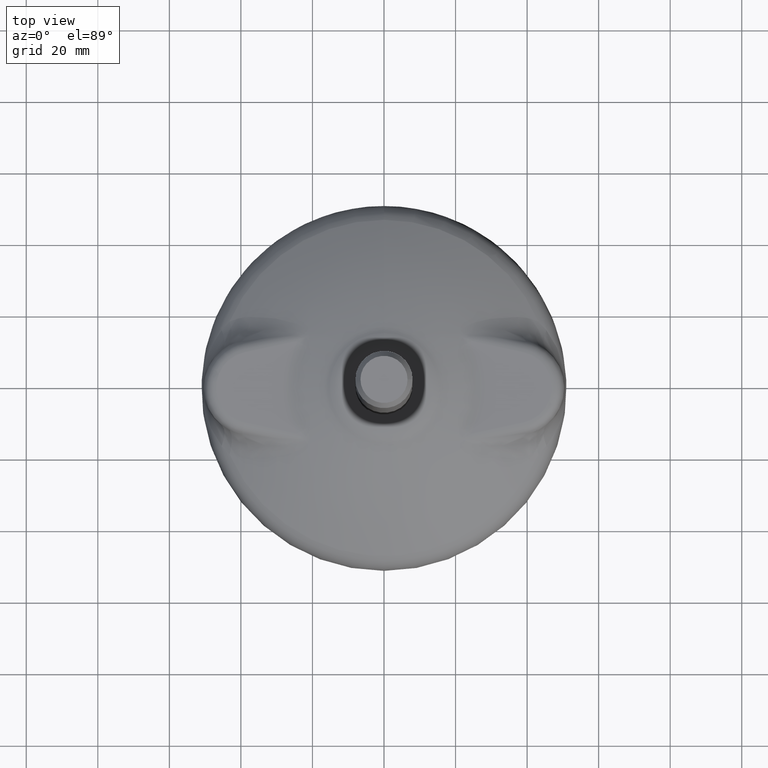
[diagram: clean part render]
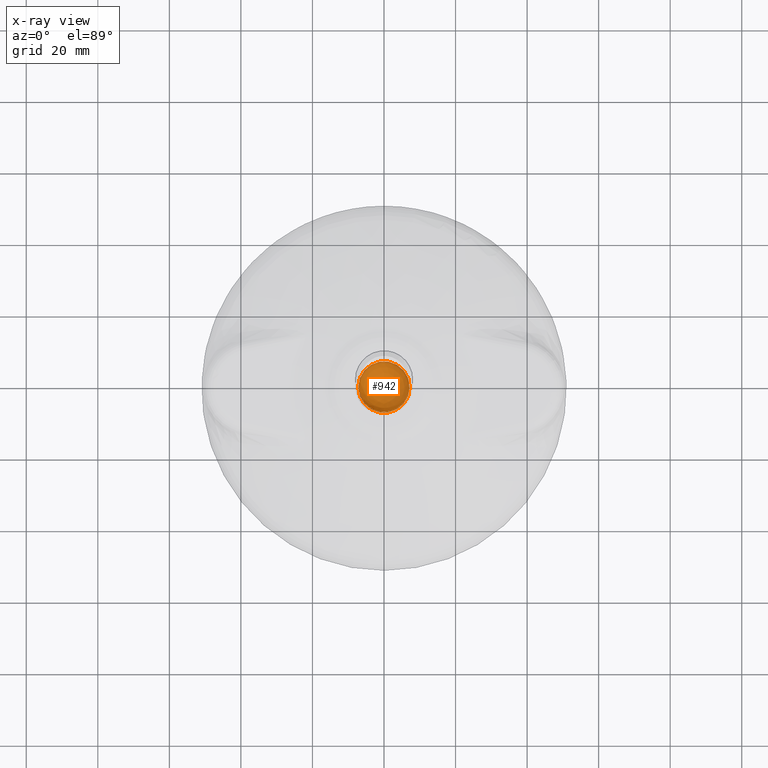
[diagram: x-ray — body ghosted, one internal face saturated and labeled with its STEP entity id]
A machine part, top view, then the same camera in x-ray: the body is ghosted and one INTERNAL B-rep face — a face not visible from any outside direction — is saturated and labeled: STEP entity #942.
In plain terms, the highlighted spherical surface has radius 7.2 mm.
Its self-contained STEP definition (entity closure, byte-faithful):
#17=SPHERICAL_SURFACE('',#1069,7.2);
#193=FACE_OUTER_BOUND('',#260,.T.);
#260=EDGE_LOOP('',(#760,#761,#762,#763));
#328=CIRCLE('',#1065,6.95000000000002);
#329=CIRCLE('',#1066,6.95000000000002);
#332=CIRCLE('',#1070,7.2);
#406=VERTEX_POINT('',#5373);
#407=VERTEX_POINT('',#5374);
#410=VERTEX_POINT('',#5383);
#526=EDGE_CURVE('',#406,#407,#328,.T.);
#527=EDGE_CURVE('',#407,#406,#329,.T.);
#531=EDGE_CURVE('',#410,#406,#332,.T.);
#760=ORIENTED_EDGE('',*,*,#526,.T.);
#761=ORIENTED_EDGE('',*,*,#527,.T.);
#762=ORIENTED_EDGE('',*,*,#531,.F.);
#763=ORIENTED_EDGE('',*,*,#531,.T.);
#942=ADVANCED_FACE('',(#193),#17,.F.);
#1065=AXIS2_PLACEMENT_3D('',#5375,#1282,#1283);
#1066=AXIS2_PLACEMENT_3D('',#5376,#1284,#1285);
#1069=AXIS2_PLACEMENT_3D('',#5382,#1291,#1292);
#1070=AXIS2_PLACEMENT_3D('',#5384,#1293,#1294);
#1282=DIRECTION('center_axis',(0.,0.,1.));
#1283=DIRECTION('ref_axis',(1.,0.,0.));
#1284=DIRECTION('center_axis',(0.,0.,1.));
#1285=DIRECTION('ref_axis',(1.,0.,0.));
#1291=DIRECTION('center_axis',(0.,6.12323399573676E-17,1.));
#1292=DIRECTION('ref_axis',(0.,1.,0.));
#1293=DIRECTION('center_axis',(-1.,-1.22464679914735E-16,0.));
#1294=DIRECTION('ref_axis',(1.22464679914735E-16,-1.,0.));
#5373=CARTESIAN_POINT('',(8.51129525407413E-16,-6.95000000000002,21.5608319167749));
#5374=CARTESIAN_POINT('',(-6.95000000000002,-8.51129525407413E-16,21.5608319167749));
#5375=CARTESIAN_POINT('Origin',(0.,0.,21.5608319167749));
#5376=CARTESIAN_POINT('Origin',(0.,0.,21.5608319167749));
#5382=CARTESIAN_POINT('Origin',(0.,0.,19.6800076293945));
#5383=CARTESIAN_POINT('',(5.39913521758269E-32,-4.40872847693047E-16,12.4800076293945));
#5384=CARTESIAN_POINT('Origin',(0.,0.,19.6800076293945));